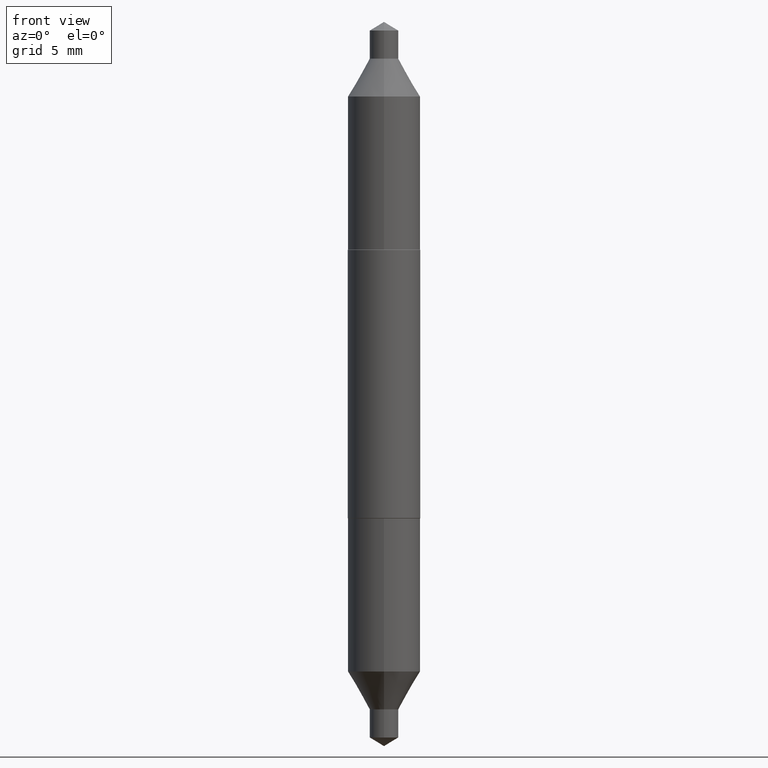
[diagram: clean part render]
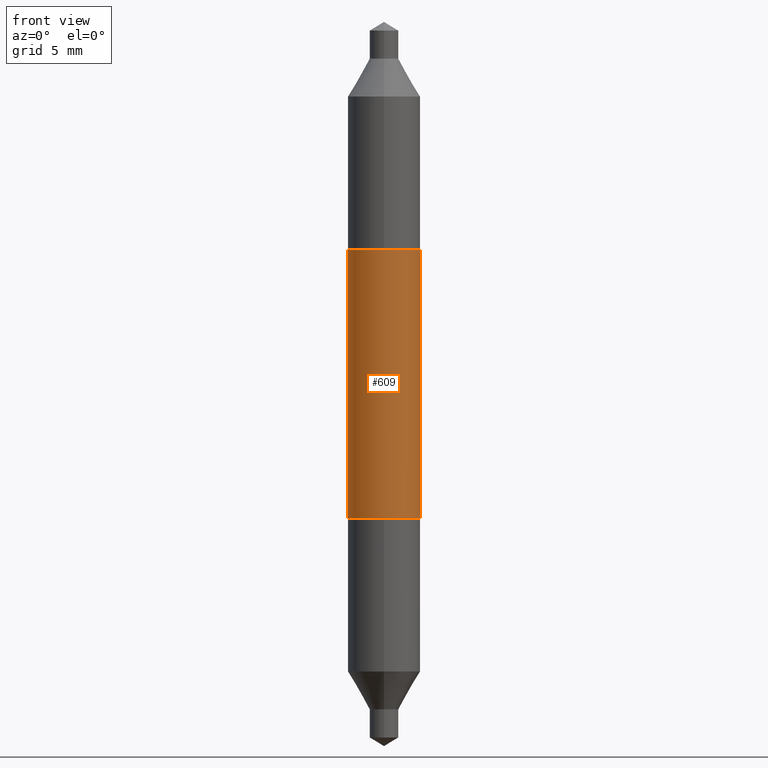
[diagram: same view with one face highlighted and labeled with its STEP entity id]
A machine part, front view. The second image highlights one B-rep face of the part: STEP entity #609.
In plain terms, the highlighted cylindrical surface (edge-blend (fillet) strip) has radius 1.5748 mm, axis along (-0, 0, 1).
Its self-contained STEP definition (entity closure, byte-faithful):
#37 = CARTESIAN_POINT ( 'NONE',  ( -0.06200000000000002037, -3.607584710932394325E-16, -0.2294999999999999263 ) ) ;
#69 = VERTEX_POINT ( 'NONE', #138 ) ;
#70 = ORIENTED_EDGE ( 'NONE', *, *, #620, .T. ) ;
#74 = DIRECTION ( 'NONE',  ( -2.445468806185136597E-29, 3.491481338843145583E-15, 1.000000000000000000 ) ) ;
#100 = CARTESIAN_POINT ( 'NONE',  ( 0.06200000000000002037, -1.234238653281050355E-15, -0.2294999999999999263 ) ) ;
#106 = AXIS2_PLACEMENT_3D ( 'NONE', #227, #511, #442 ) ;
#119 = DIRECTION ( 'NONE',  ( 1.000000000000000000, -6.982962677686267499E-15, 0.000000000000000000 ) ) ;
#138 = CARTESIAN_POINT ( 'NONE',  ( 0.06200000000000002037, 3.683512812479530302E-16, 0.2294999999999999263 ) ) ;
#143 = VECTOR ( 'NONE', #547, 39.37007874015748143 ) ;
#164 = CIRCLE ( 'NONE', #187, 0.06200000000000002037 ) ;
#168 = EDGE_LOOP ( 'NONE', ( #661, #70, #647, #487 ) ) ;
#173 = EDGE_CURVE ( 'NONE', #240, #652, #295, .T. ) ;
#187 = AXIS2_PLACEMENT_3D ( 'NONE', #602, #554, #119 ) ;
#227 = CARTESIAN_POINT ( 'NONE',  ( 5.612350910194886774E-30, -8.012949672645016925E-16, -0.2294999999999999263 ) ) ;
#240 = VERTEX_POINT ( 'NONE', #37 ) ;
#291 = DIRECTION ( 'NONE',  ( -2.445468806185136877E-29, 3.491481338843145188E-15, 1.000000000000000000 ) ) ;
#294 = DIRECTION ( 'NONE',  ( 1.000000000000000000, -6.982962677686266711E-15, 4.876176775795935232E-29 ) ) ;
#295 = LINE ( 'NONE', #553, #630 ) ;
#297 = CARTESIAN_POINT ( 'NONE',  ( 0.06199999999999999956, -4.329436860165485144E-16, 3.023229600993479967E-30 ) ) ;
#344 = CYLINDRICAL_SURFACE ( 'NONE', #488, 0.06199999999999999956 ) ;
#442 = DIRECTION ( 'NONE',  ( 1.000000000000000000, -6.982962677686265922E-15, 0.000000000000000000 ) ) ;
#487 = ORIENTED_EDGE ( 'NONE', *, *, #641, .F. ) ;
#488 = AXIS2_PLACEMENT_3D ( 'NONE', #671, #74, #294 ) ;
#500 = VERTEX_POINT ( 'NONE', #100 ) ;
#511 = DIRECTION ( 'NONE',  ( -2.445468806185136597E-29, 3.491481338843145583E-15, 1.000000000000000000 ) ) ;
#514 = LINE ( 'NONE', #297, #143 ) ;
#547 = DIRECTION ( 'NONE',  ( -2.445468806185136877E-29, 3.491481338843145188E-15, 1.000000000000000000 ) ) ;
#553 = CARTESIAN_POINT ( 'NONE',  ( -0.06199999999999999956, 4.405364961712621121E-16, -3.049739755958041223E-30 ) ) ;
#554 = DIRECTION ( 'NONE',  ( -2.445468806185136597E-29, 3.491481338843145583E-15, 1.000000000000000000 ) ) ;
#574 = EDGE_CURVE ( 'NONE', #500, #69, #514, .T. ) ;
#602 = CARTESIAN_POINT ( 'NONE',  ( -5.612350910194886774E-30, 8.012949672645016925E-16, 0.2294999999999999263 ) ) ;
#605 = CARTESIAN_POINT ( 'NONE',  ( -0.06200000000000002037, 4.405364961712619149E-16, 0.2294999999999999263 ) ) ;
#607 = FACE_OUTER_BOUND ( 'NONE', #168, .T. ) ;
#609 = ADVANCED_FACE ( 'NONE', ( #607 ), #344, .T. ) ;
#620 = EDGE_CURVE ( 'NONE', #240, #500, #697, .T. ) ;
#630 = VECTOR ( 'NONE', #291, 39.37007874015748143 ) ;
#641 = EDGE_CURVE ( 'NONE', #652, #69, #164, .T. ) ;
#647 = ORIENTED_EDGE ( 'NONE', *, *, #574, .T. ) ;
#652 = VERTEX_POINT ( 'NONE', #605 ) ;
#661 = ORIENTED_EDGE ( 'NONE', *, *, #173, .F. ) ;
#671 = CARTESIAN_POINT ( 'NONE',  ( 0.000000000000000000, 0.000000000000000000, 0.000000000000000000 ) ) ;
#697 = CIRCLE ( 'NONE', #106, 0.06200000000000002037 ) ;